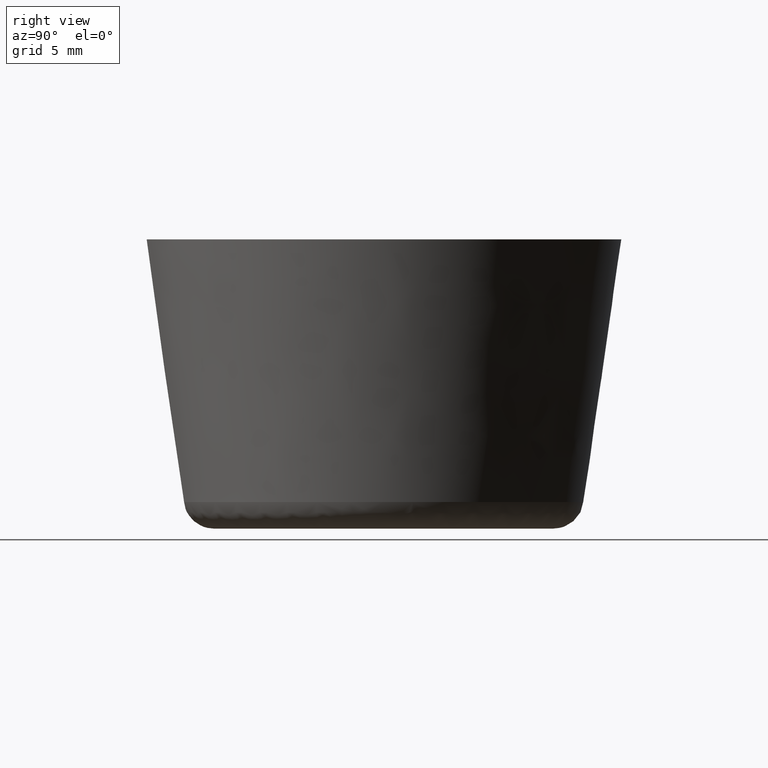
[diagram: clean part render]
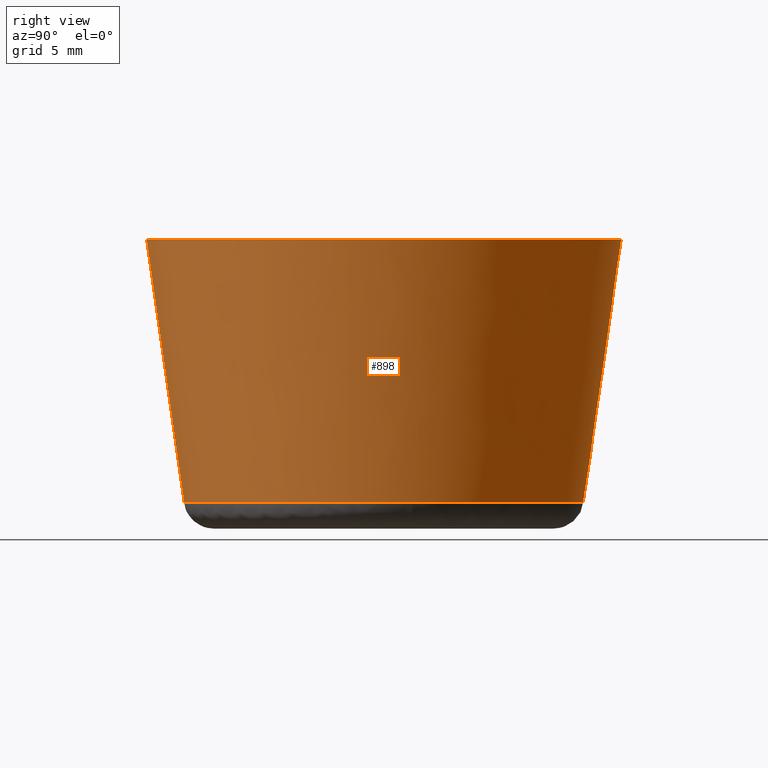
[diagram: same view with one face highlighted and labeled with its STEP entity id]
A machine part, right view. The second image highlights one B-rep face of the part: STEP entity #898.
In plain terms, the highlighted face is a freeform B-spline surface patch.
Its self-contained STEP definition (entity closure, byte-faithful):
#697=CARTESIAN_POINT('',(0.759793210136930,-9.654128600236650,1.287866823112522));
#698=VERTEX_POINT('',#697);
#699=CARTESIAN_POINT('',(-9.004789993576404,-3.562757519199149,1.287866540098154));
#700=VERTEX_POINT('',#699);
#716=CARTESIAN_POINT('',(0.902272979649977,-11.464549499198901,13.999997488957700));
#717=VERTEX_POINT('',#716);
#718=CARTESIAN_POINT('',(0.759793210136930,-9.654128600236650,1.287866823112522));
#719=CARTESIAN_POINT('',(0.902272979649977,-11.464549499198901,13.999997488957700));
#720=QUASI_UNIFORM_CURVE('',1,(#718,#719),.UNSPECIFIED.,.F.,.U.);
#721=EDGE_CURVE('',#698,#717,#720,.T.);
#723=CARTESIAN_POINT('',(-10.693441957360051,-4.230873441851633,13.999997253690299));
#724=VERTEX_POINT('',#723);
#740=CARTESIAN_POINT('',(-9.004789993576404,-3.562757519199149,1.287866540098154));
#741=CARTESIAN_POINT('',(-10.693441957360051,-4.230873441851633,13.999997253690299));
#742=QUASI_UNIFORM_CURVE('',1,(#740,#741),.UNSPECIFIED.,.F.,.U.);
#743=EDGE_CURVE('',#700,#724,#742,.T.);
#748=CARTESIAN_POINT('',(0.756234312091270,-9.608867997951839,0.970064699977414));
#749=CARTESIAN_POINT('',(10.365102310043110,-8.852633685860571,0.970064699977414));
#750=CARTESIAN_POINT('',(9.608867997951839,0.756234312091270,0.970064699977414));
#751=CARTESIAN_POINT('',(8.852633685860571,10.365102310043110,0.970064699977414));
#752=CARTESIAN_POINT('',(-0.756234312091270,9.608867997951839,0.970064699977414));
#753=CARTESIAN_POINT('',(-10.365102310043110,8.852633685860571,0.970064699977414));
#754=CARTESIAN_POINT('',(-9.608867997951839,-0.756234312091270,0.970064699977414));
#755=CARTESIAN_POINT('',(-9.495265644084929,-2.199689078835573,0.970064699977414));
#756=CARTESIAN_POINT('',(-8.962573087336143,-3.546056710066132,0.970064699977414));
#757=CARTESIAN_POINT('',(0.905930733089698,-11.510941371430450,14.325748382500571));
#758=CARTESIAN_POINT('',(12.416872104520145,-10.605010638340751,14.325748382500572));
#759=CARTESIAN_POINT('',(11.510941371430450,0.905930733089698,14.325748382500571));
#760=CARTESIAN_POINT('',(10.605010638340751,12.416872104520145,14.325748382500572));
#761=CARTESIAN_POINT('',(-0.905930733089698,11.510941371430450,14.325748382500571));
#762=CARTESIAN_POINT('',(-12.416872104520145,10.605010638340751,14.325748382500572));
#763=CARTESIAN_POINT('',(-11.510941371430450,-0.905930733089698,14.325748382500571));
#764=CARTESIAN_POINT('',(-11.374851455813202,-2.635117063451102,14.325748382500571));
#765=CARTESIAN_POINT('',(-10.736712520921008,-4.247997880503651,14.325748382500571));
#773=(BOUNDED_SURFACE()B_SPLINE_SURFACE(2,1,((#748,#757),(#749,#758),(#750,#759),(#751,#760),(#752,#761),(#753,#762),(#754,#763),(#755,#764),(#756,#765)),.UNSPECIFIED.,.F.,.F.,.U.)B_SPLINE_SURFACE_WITH_KNOTS((3,2,2,2,3),(2,2),(0.0,19.130926388343550,38.261852776687093,57.392779165030632,61.218964442699352),(0.0,13.491277877361030),.UNSPECIFIED.)GEOMETRIC_REPRESENTATION_ITEM()RATIONAL_B_SPLINE_SURFACE(((1.0,1.0),(0.707106781186548,0.707106781186548),(1.0,1.0),(0.707106781186548,0.707106781186548),(1.0,1.0),(0.707106781186548,0.707106781186548),(1.0,1.0),(0.941421356237310,0.941421356237310),(0.906274169979695,0.906274169979695)))REPRESENTATION_ITEM('')SURFACE());
#774=CARTESIAN_POINT('',(-9.683980999999999,0.0,1.287868000000090));
#775=VERTEX_POINT('',#774);
#776=CARTESIAN_POINT('',(-9.004789993576404,-3.562757519199149,1.287866540098154));
#777=CARTESIAN_POINT('',(-9.683980903034806,-1.846117960535168,1.287867270049122));
#778=CARTESIAN_POINT('',(-9.683980999999999,0.0,1.287868000000090));
#786=(BOUNDED_CURVE()B_SPLINE_CURVE(2,(#776,#777,#778),.UNSPECIFIED.,.F.,.U.)B_SPLINE_CURVE_WITH_KNOTS((3,3),(0.937532585886109,1.0),.UNSPECIFIED.)CURVE()GEOMETRIC_REPRESENTATION_ITEM()RATIONAL_B_SPLINE_CURVE((0.890203229637420,0.926814872036918,1.0))REPRESENTATION_ITEM(''));
#787=EDGE_CURVE('',#700,#775,#786,.T.);
#788=ORIENTED_EDGE('',*,*,#787,.F.);
#789=ORIENTED_EDGE('',*,*,#743,.T.);
#790=CARTESIAN_POINT('',(-11.500000000000000,0.0,14.0));
#791=VERTEX_POINT('',#790);
#792=CARTESIAN_POINT('',(-10.693441957360053,-4.230873441851633,13.999997253690308));
#793=CARTESIAN_POINT('',(-11.499999817592792,-2.192316267715230,13.999998626845150));
#794=CARTESIAN_POINT('',(-11.500000000000000,0.0,14.0));
#802=(BOUNDED_CURVE()B_SPLINE_CURVE(2,(#792,#793,#794),.UNSPECIFIED.,.F.,.U.)B_SPLINE_CURVE_WITH_KNOTS((3,3),(0.937532605536812,1.0),.UNSPECIFIED.)CURVE()GEOMETRIC_REPRESENTATION_ITEM()RATIONAL_B_SPLINE_CURVE((0.890203252671658,0.926814895059149,1.0))REPRESENTATION_ITEM(''));
#803=EDGE_CURVE('',#724,#791,#802,.T.);
#804=ORIENTED_EDGE('',*,*,#803,.T.);
#805=CARTESIAN_POINT('',(11.500000000000000,0.0,14.0));
#806=VERTEX_POINT('',#805);
#807=CARTESIAN_POINT('',(-11.500000000000000,0.0,14.0));
#808=CARTESIAN_POINT('',(-11.500000000000000,11.500000000000000,13.999999999999998));
#809=CARTESIAN_POINT('',(0.0,11.500000000000000,14.0));
#810=CARTESIAN_POINT('',(11.500000000000000,11.500000000000000,13.999999999999998));
#811=CARTESIAN_POINT('',(11.500000000000000,0.0,14.0));
#819=(BOUNDED_CURVE()B_SPLINE_CURVE(2,(#807,#808,#809,#810,#811),.UNSPECIFIED.,.F.,.U.)B_SPLINE_CURVE_WITH_KNOTS((3,2,3),(0.0,0.250000000000000,0.500000000000000),.UNSPECIFIED.)CURVE()GEOMETRIC_REPRESENTATION_ITEM()RATIONAL_B_SPLINE_CURVE((1.0,0.707106781186548,1.0,0.707106781186548,1.0))REPRESENTATION_ITEM(''));
#820=EDGE_CURVE('',#791,#806,#819,.T.);
#821=ORIENTED_EDGE('',*,*,#820,.T.);
#822=CARTESIAN_POINT('',(11.500000000000000,0.0,14.0));
#823=CARTESIAN_POINT('',(11.499999985927593,-10.630496607588432,13.999998744478859));
#824=CARTESIAN_POINT('',(0.902272979649977,-11.464549499198895,13.999997488957700));
#832=(BOUNDED_CURVE()B_SPLINE_CURVE(2,(#822,#823,#824),.UNSPECIFIED.,.F.,.U.)B_SPLINE_CURVE_WITH_KNOTS((3,3),(0.500000000000000,0.736331399216205),.UNSPECIFIED.)CURVE()GEOMETRIC_REPRESENTATION_ITEM()RATIONAL_B_SPLINE_CURVE((1.0,0.723120543107515,0.969723561908021))REPRESENTATION_ITEM(''));
#833=EDGE_CURVE('',#806,#717,#832,.T.);
#834=ORIENTED_EDGE('',*,*,#833,.T.);
#835=ORIENTED_EDGE('',*,*,#721,.F.);
#836=CARTESIAN_POINT('',(9.683980999999999,0.0,1.287868000000090));
#837=VERTEX_POINT('',#836);
#838=CARTESIAN_POINT('',(9.683980999999999,0.0,1.287868000000090));
#839=CARTESIAN_POINT('',(9.683980993404466,-8.951782821511831,1.287867411556306));
#840=CARTESIAN_POINT('',(0.759793210136930,-9.654128600236650,1.287866823112521));
#848=(BOUNDED_CURVE()B_SPLINE_CURVE(2,(#838,#839,#840),.UNSPECIFIED.,.F.,.U.)B_SPLINE_CURVE_WITH_KNOTS((3,3),(0.500000000000000,0.736331356903035),.UNSPECIFIED.)CURVE()GEOMETRIC_REPRESENTATION_ITEM()RATIONAL_B_SPLINE_CURVE((1.0,0.723120592680477,0.969723473603602))REPRESENTATION_ITEM(''));
#849=EDGE_CURVE('',#837,#698,#848,.T.);
#850=ORIENTED_EDGE('',*,*,#849,.F.);
#851=CARTESIAN_POINT('',(0.783608279688495,9.652224928600838,1.287867999977965));
#852=VERTEX_POINT('',#851);
#853=CARTESIAN_POINT('',(0.783608279688495,9.652224928600838,1.287867999977965));
#854=CARTESIAN_POINT('',(9.683980999999998,8.929655178356631,1.287868000000090));
#855=CARTESIAN_POINT('',(9.683980999999999,0.0,1.287868000000090));
#863=(BOUNDED_CURVE()B_SPLINE_CURVE(2,(#853,#854,#855),.UNSPECIFIED.,.F.,.U.)B_SPLINE_CURVE_WITH_KNOTS((3,3),(0.264091366876306,0.500000000000000),.UNSPECIFIED.)CURVE()GEOMETRIC_REPRESENTATION_ITEM()RATIONAL_B_SPLINE_CURVE((0.968842955716470,0.723615844394078,1.0))REPRESENTATION_ITEM(''));
#864=EDGE_CURVE('',#852,#837,#863,.T.);
#865=ORIENTED_EDGE('',*,*,#864,.F.);
#866=CARTESIAN_POINT('',(-9.591609627675894,1.334358556978351,1.287867999980285));
#867=VERTEX_POINT('',#866);
#868=CARTESIAN_POINT('',(-9.591609627675894,1.334358556978351,1.287867999980285));
#869=CARTESIAN_POINT('',(-8.430032938582400,9.683980999999999,1.287868000000090));
#870=CARTESIAN_POINT('',(0.0,9.683980999999999,1.287868000000090));
#871=CARTESIAN_POINT('',(0.392447604251429,9.683981000000001,1.287868000000090));
#872=CARTESIAN_POINT('',(0.783608279688495,9.652224928600838,1.287867999977965));
#880=(BOUNDED_CURVE()B_SPLINE_CURVE(2,(#868,#869,#870,#871,#872),.UNSPECIFIED.,.F.,.U.)B_SPLINE_CURVE_WITH_KNOTS((3,2,3),(0.023792609107155,0.250000000000000,0.264091366876307),.UNSPECIFIED.)CURVE()GEOMETRIC_REPRESENTATION_ITEM()RATIONAL_B_SPLINE_CURVE((0.949556158169115,0.734981556648007,1.0,0.983490936792469,0.968842955716470))REPRESENTATION_ITEM(''));
#881=EDGE_CURVE('',#867,#852,#880,.T.);
#882=ORIENTED_EDGE('',*,*,#881,.F.);
#883=CARTESIAN_POINT('',(-9.683980999999999,0.0,1.287868000000090));
#884=CARTESIAN_POINT('',(-9.683980999999999,0.670376496503082,1.287868000000090));
#885=CARTESIAN_POINT('',(-9.591609627675894,1.334358556978351,1.287867999980285));
#893=(BOUNDED_CURVE()B_SPLINE_CURVE(2,(#883,#884,#885),.UNSPECIFIED.,.F.,.U.)B_SPLINE_CURVE_WITH_KNOTS((3,3),(0.0,0.023792609107155),.UNSPECIFIED.)CURVE()GEOMETRIC_REPRESENTATION_ITEM()RATIONAL_B_SPLINE_CURVE((1.0,0.972125224538541,0.949556158169115))REPRESENTATION_ITEM(''));
#894=EDGE_CURVE('',#775,#867,#893,.T.);
#895=ORIENTED_EDGE('',*,*,#894,.F.);
#896=EDGE_LOOP('',(#788,#789,#804,#821,#834,#835,#850,#865,#882,#895));
#897=FACE_OUTER_BOUND('',#896,.T.);
#898=ADVANCED_FACE('',(#897),#773,.T.);